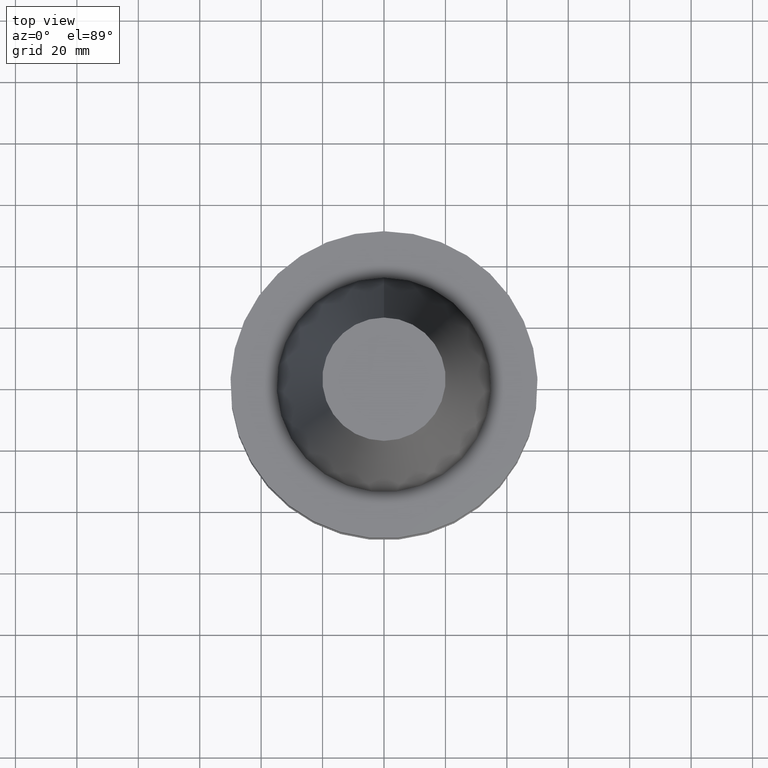
[diagram: clean part render]
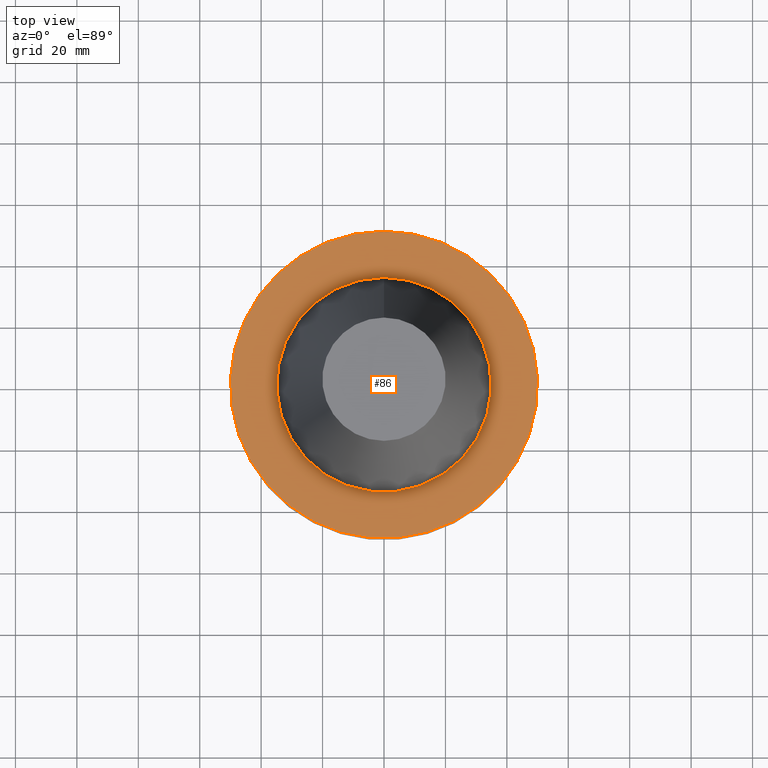
[diagram: same view with one face highlighted and labeled with its STEP entity id]
A machine part, top view. The second image highlights one B-rep face of the part: STEP entity #86.
In plain terms, the highlighted planar face has unit normal (-0, -0, 1).
Its self-contained STEP definition (entity closure, byte-faithful):
#86=ADVANCED_FACE('',(#121,#122),#123,.T.);
#121=FACE_BOUND('',#161,.T.);
#122=FACE_OUTER_BOUND('',#162,.T.);
#123=PLANE('',#163);
#161=EDGE_LOOP('',(#223));
#162=EDGE_LOOP('',(#224));
#163=AXIS2_PLACEMENT_3D('',#225,#226,#227);
#223=ORIENTED_EDGE('',*,*,#249,.F.);
#224=ORIENTED_EDGE('',*,*,#248,.T.);
#225=CARTESIAN_POINT('',(9.1848509936051E-017,42.4625,-1.5));
#226=DIRECTION('',(-6.12323399573677E-017,-4.63006370244663E-018,1.0));
#227=DIRECTION('',(-5.1106623654215E-033,1.0,4.63006370244663E-018));
#248=EDGE_CURVE('',#271,#271,#272,.T.);
#249=EDGE_CURVE('',#273,#273,#274,.T.);
#271=VERTEX_POINT('',#297);
#272=CIRCLE('',#298,50.0);
#273=VERTEX_POINT('',#299);
#274=CIRCLE('',#300,34.925);
#297=CARTESIAN_POINT('',(9.1848509936051E-017,50.0,-1.5));
#298=AXIS2_PLACEMENT_3D('',#333,#334,#335);
#299=CARTESIAN_POINT('',(9.18485099360511E-017,34.925,-1.5));
#300=AXIS2_PLACEMENT_3D('',#336,#337,#338);
#333=CARTESIAN_POINT('',(9.18485099360515E-017,1.83697019872103E-016,-1.5));
#334=DIRECTION('',(-6.12323399573677E-017,-1.22464679914735E-016,1.0));
#335=DIRECTION('',(-1.23259516440783E-032,1.0,1.22464679914735E-016));
#336=CARTESIAN_POINT('',(9.18485099360515E-017,1.83697019872103E-016,-1.5));
#337=DIRECTION('',(-6.12323399573677E-017,-1.22464679914735E-016,1.0));
#338=DIRECTION('',(-1.23259516440783E-032,1.0,1.22464679914735E-016));